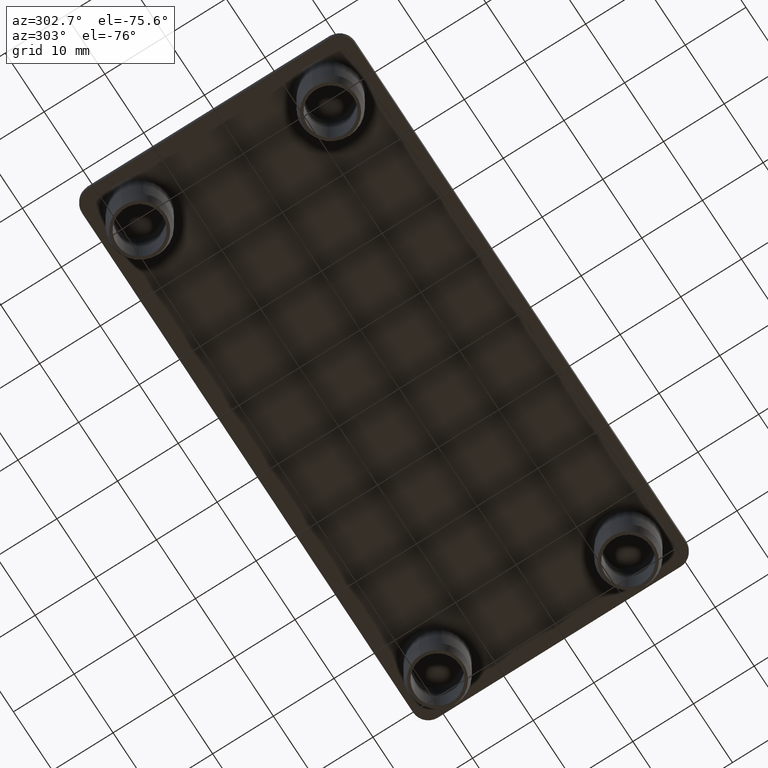
[diagram: clean part render]
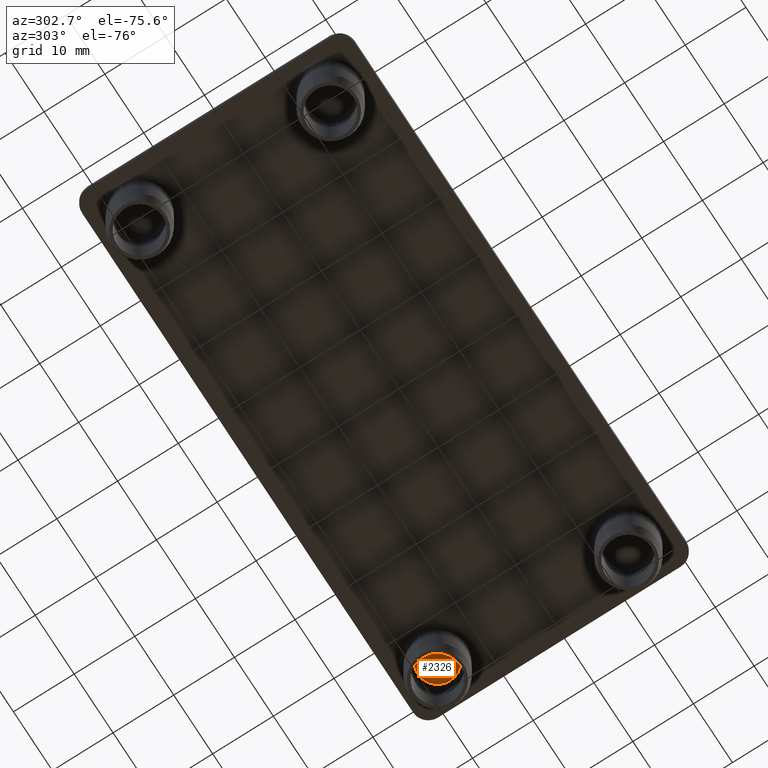
[diagram: same view with one face highlighted and labeled with its STEP entity id]
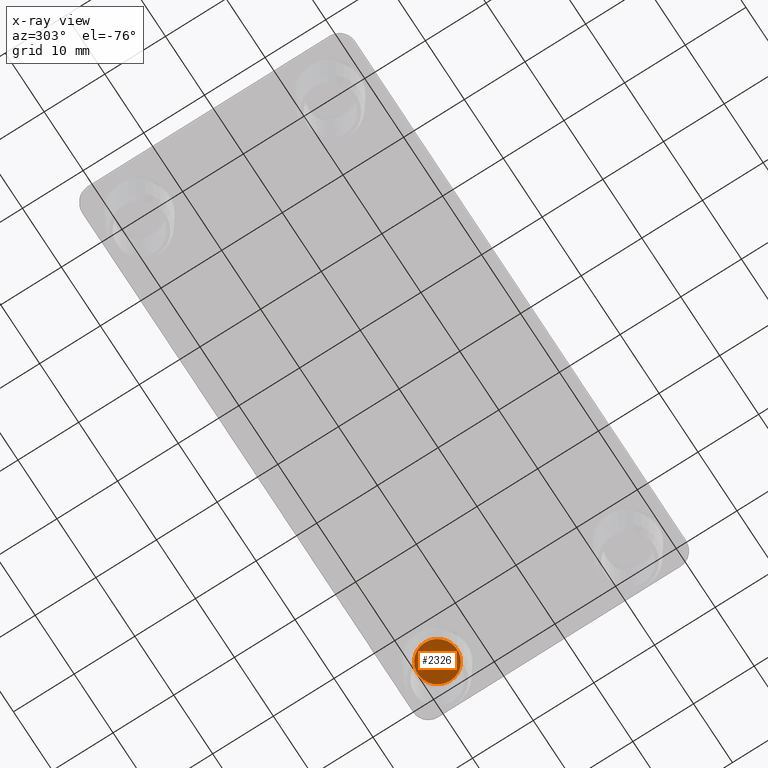
[diagram: x-ray of the same camera — body ghosted, the highlighted face saturated]
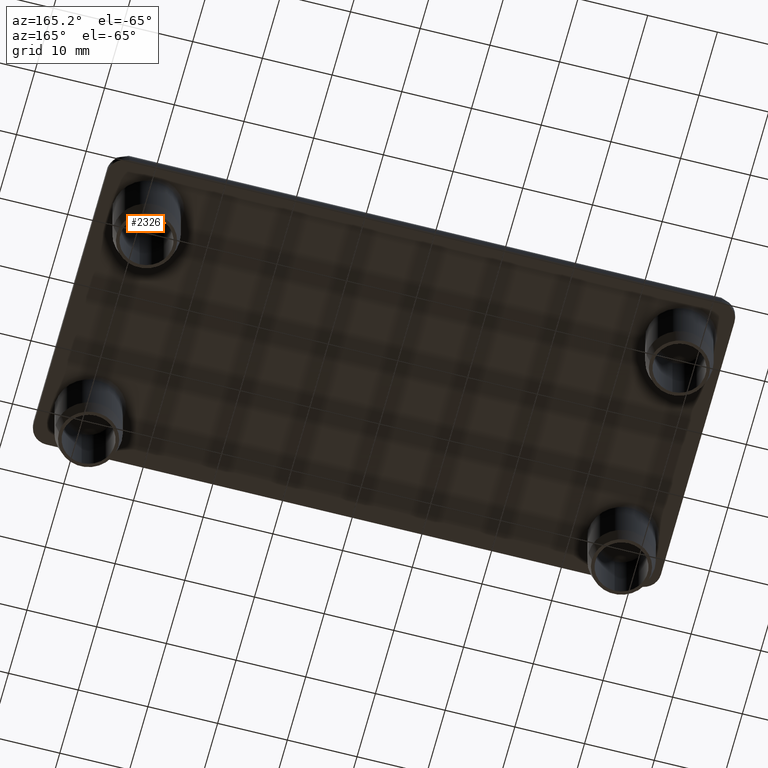
[diagram: same view with one face highlighted and labeled with its STEP entity id]
A machine part, auxiliary view. The second image highlights one B-rep face of the part: STEP entity #2326.
The next image is the same camera in x-ray: the body ghosted, the highlighted face saturated — about 0% of this face is hidden behind the body in this view.
A second angle (auxiliary view) of the same face is appended — the face is thin or edge-on in the first view.
In plain terms, the highlighted planar face has unit normal (0, 0, 1).
Its self-contained STEP definition (entity closure, byte-faithful):
#897=CARTESIAN_POINT('',(41.480000000000011,38.229999999999997,-3.552714E-015));
#898=VERTEX_POINT('',#897);
#906=CARTESIAN_POINT('',(34.980000000000004,38.229999999999997,-3.552714E-015));
#907=VERTEX_POINT('',#906);
#908=CARTESIAN_POINT('',(38.230000000000011,38.229999999999997,-3.552714E-015));
#909=DIRECTION('',(0.0,-1.224647E-016,-1.0));
#910=DIRECTION('',(-1.0,0.0,0.0));
#911=AXIS2_PLACEMENT_3D('',#908,#909,#910);
#912=CIRCLE('',#911,3.250000000000000);
#913=EDGE_CURVE('',#907,#898,#912,.T.);
#2311=CARTESIAN_POINT('',(41.805000000000014,41.805000000000000,-3.996803E-015));
#2312=DIRECTION('',(0.0,0.0,1.0));
#2313=DIRECTION('',(-1.0,0.0,0.0));
#2314=AXIS2_PLACEMENT_3D('',#2311,#2312,#2313);
#2315=PLANE('',#2314);
#2316=ORIENTED_EDGE('',*,*,#913,.T.);
#2317=CARTESIAN_POINT('',(38.230000000000011,38.229999999999997,-3.552714E-015));
#2318=DIRECTION('',(0.0,-1.224647E-016,-1.0));
#2319=DIRECTION('',(-1.0,0.0,0.0));
#2320=AXIS2_PLACEMENT_3D('',#2317,#2318,#2319);
#2321=CIRCLE('',#2320,3.250000000000000);
#2322=EDGE_CURVE('',#898,#907,#2321,.T.);
#2323=ORIENTED_EDGE('',*,*,#2322,.T.);
#2324=EDGE_LOOP('',(#2316,#2323));
#2325=FACE_OUTER_BOUND('',#2324,.T.);
#2326=ADVANCED_FACE('',(#2325),#2315,.F.);